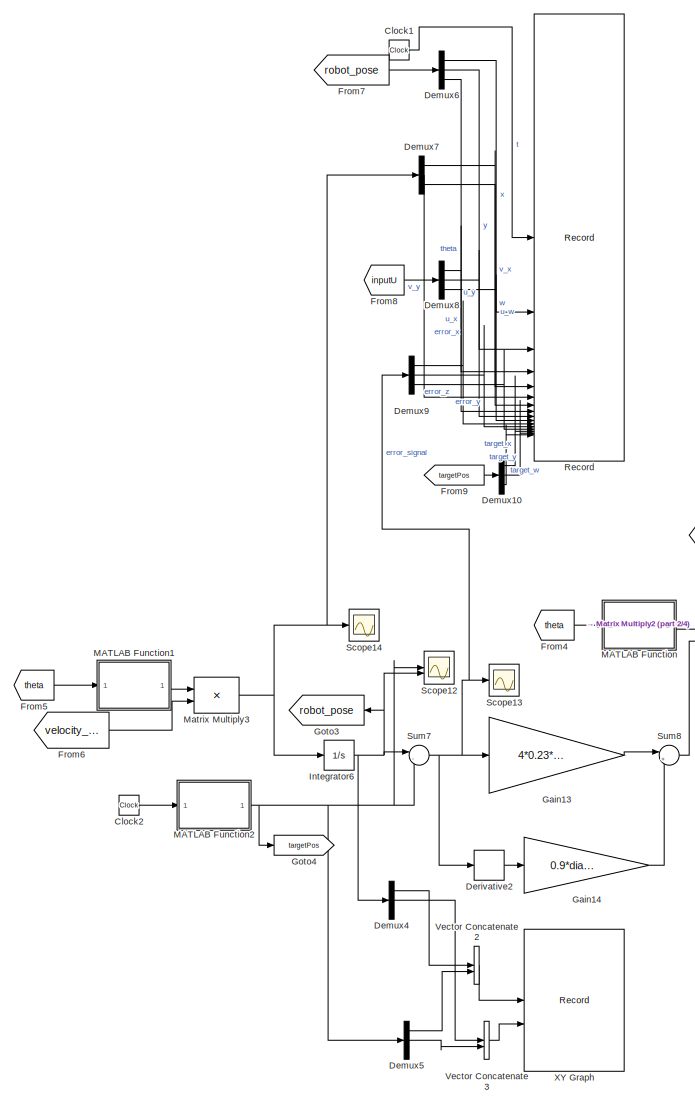
[diagram: root canvas - part 1/4, left side, full height]
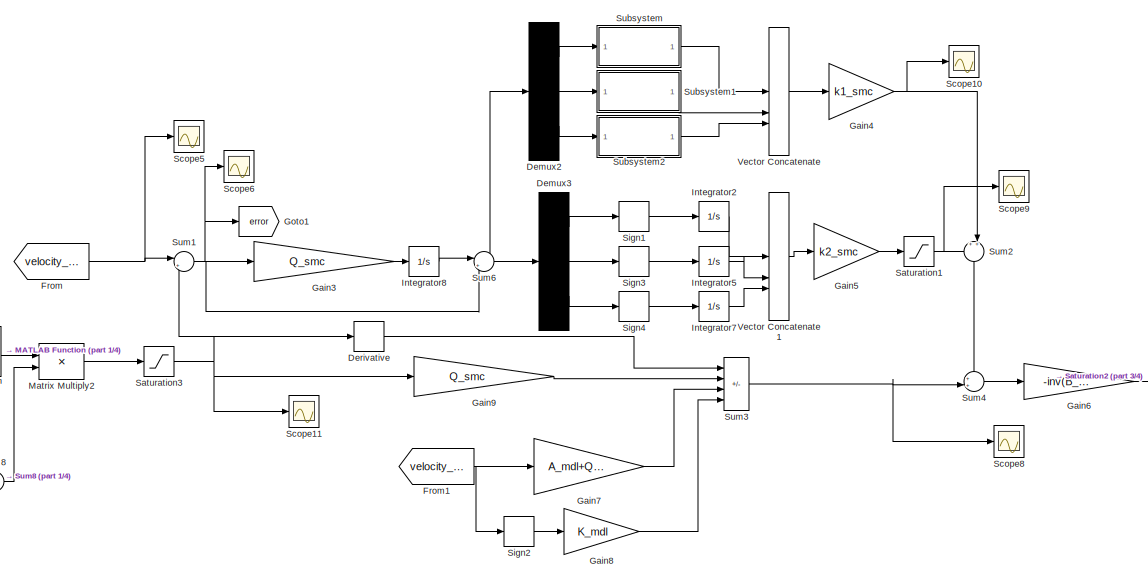
[diagram: root canvas - part 2/4, central region]
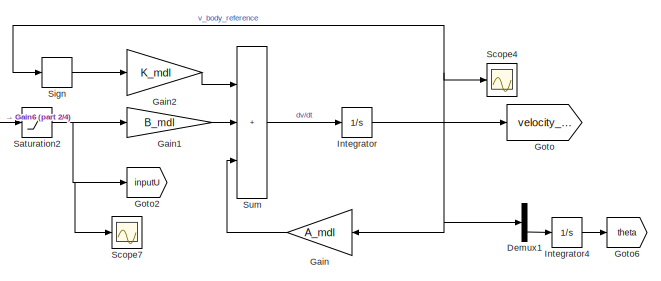
[diagram: root canvas - part 3/4, middle right region]
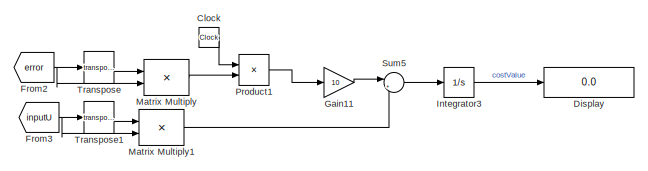
[diagram: root canvas - part 4/4, bottom right region]
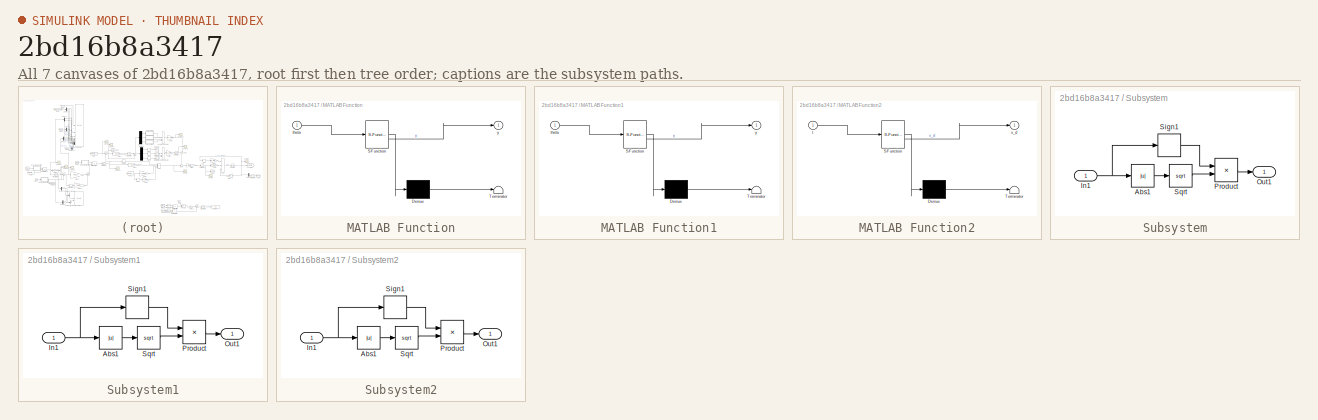
[diagram: thumbnail index - all 7 canvases of the model, root first then tree order]
MODEL slx_2bd16b8a3417
KIND model
CONFIG AbsTol = auto
CONFIG EnableMultiTasking = off
CONFIG FixedStep = 0.0001
CONFIG InitFcn = SimInit
CONFIG MaxStep = auto
CONFIG MinStep = auto
CONFIG RelTol = 1e-3
CONFIG SampleTimeConstraint = Unconstrained
CONFIG SolverName = ode4
CONFIG StartTime = 0.0
CONFIG StopTime = 10
BLOCK [Clock] Clock
BLOCK [Clock] Clock1
BLOCK [Clock] Clock2
BLOCK [Demux] Demux1
  Outputs = 3
BLOCK [Demux] Demux10
  Outputs = 3
BLOCK [Demux] Demux2
  Outputs = 3
BLOCK [Demux] Demux3
  Outputs = 3
BLOCK [Demux] Demux4
  Outputs = 3
BLOCK [Demux] Demux5
  Outputs = 3
BLOCK [Demux] Demux6
  Outputs = 3
BLOCK [Demux] Demux7
  Outputs = 3
BLOCK [Demux] Demux8
  Outputs = 3
BLOCK [Demux] Demux9
  Outputs = 3
BLOCK [Derivative] Derivative
BLOCK [Derivative] Derivative2
BLOCK [Display] Display
  Decimation = 1
BLOCK [From] From
  GotoTag = velocity_body
BLOCK [From] From1
  GotoTag = velocity_body
BLOCK [From] From2
  GotoTag = error
BLOCK [From] From3
  GotoTag = inputU
BLOCK [From] From4
  GotoTag = theta
BLOCK [From] From5
  GotoTag = theta
BLOCK [From] From6
  GotoTag = velocity_body
BLOCK [From] From7
  GotoTag = robot_pose
BLOCK [From] From8
  GotoTag = inputU
BLOCK [From] From9
  GotoTag = targetPos
BLOCK [Gain] Gain
  Gain = A_mdl
  Multiplication = Matrix(K*u)
  NameLocation = top
BLOCK [Gain] Gain1
  Gain = B_mdl
  Multiplication = Matrix(K*u)
BLOCK [Gain] Gain11
  Gain = 10
BLOCK [Gain] Gain13
  Gain = 4*0.23*diag([1,1,1])
  Multiplication = Matrix(K*u)
BLOCK [Gain] Gain14
  Gain = 0.9*diag([1,1,1])
  Multiplication = Matrix(K*u)
BLOCK [Gain] Gain2
  Gain = K_mdl
  Multiplication = Matrix(K*u)
BLOCK [Gain] Gain3
  Gain = Q_smc
  Multiplication = Matrix(K*u)
BLOCK [Gain] Gain4
  Gain = k1_smc
  Multiplication = Matrix(K*u)
BLOCK [Gain] Gain5
  Gain = k2_smc
  Multiplication = Matrix(K*u)
BLOCK [Gain] Gain6
  Gain = -inv(B_mdl)
  Multiplication = Matrix(K*u)
BLOCK [Gain] Gain7
  Gain = A_mdl+Q_smc
  Multiplication = Matrix(K*u)
BLOCK [Gain] Gain8
  Gain = K_mdl
  Multiplication = Matrix(K*u)
BLOCK [Gain] Gain9
  Gain = Q_smc
  Multiplication = Matrix(K*u)
BLOCK [Goto] Goto
  GotoTag = velocity_body
BLOCK [Goto] Goto1
  GotoTag = error
BLOCK [Goto] Goto2
  GotoTag = inputU
BLOCK [Goto] Goto3
  GotoTag = robot_pose
  NameLocation = top
BLOCK [Goto] Goto4
  GotoTag = targetPos
BLOCK [Goto] Goto6
  GotoTag = theta
BLOCK [Integrator] Integrator
BLOCK [Integrator] Integrator2
BLOCK [Integrator] Integrator3
BLOCK [Integrator] Integrator4
BLOCK [Integrator] Integrator5
BLOCK [Integrator] Integrator6
  InitialCondition = [2;-1;0]
BLOCK [Integrator] Integrator7
BLOCK [Integrator] Integrator8
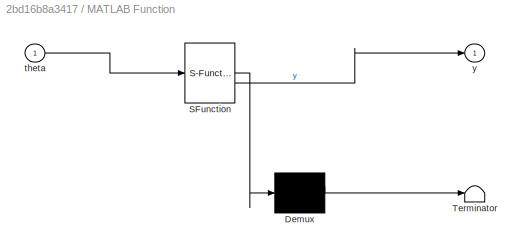
BLOCK [SubSystem] MATLAB Function
  ErrorFcn = Stateflow.Translate.translate
  PermitHierarchicalResolution = ExplicitOnly
  SFBlockType = MATLAB Function
  TreatAsAtomicUnit = on
BLOCK [Demux] MATLAB Function/ Demux 
  Outputs = 1
BLOCK [S-Function] MATLAB Function/ SFunction 
  EnableBusSupport = on
  FunctionName = sf_sfun
  PortCounts = [1 2]
  SFcnIsStateOwnerBlock = off
  SFunctionDeploymentMode = off
  Tag = Stateflow S-Function 1
BLOCK [Terminator] MATLAB Function/ Terminator 
BLOCK [Inport] MATLAB Function/theta
BLOCK [Outport] MATLAB Function/y
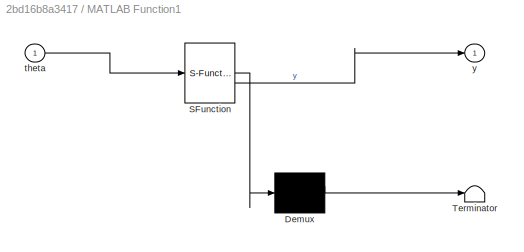
BLOCK [SubSystem] MATLAB Function1
  ErrorFcn = Stateflow.Translate.translate
  PermitHierarchicalResolution = ExplicitOnly
  SFBlockType = MATLAB Function
  TreatAsAtomicUnit = on
BLOCK [Demux] MATLAB Function1/ Demux 
  Outputs = 1
BLOCK [S-Function] MATLAB Function1/ SFunction 
  EnableBusSupport = on
  FunctionName = sf_sfun
  PortCounts = [1 2]
  SFcnIsStateOwnerBlock = off
  SFunctionDeploymentMode = off
  Tag = Stateflow S-Function 3
BLOCK [Terminator] MATLAB Function1/ Terminator 
BLOCK [Inport] MATLAB Function1/theta
BLOCK [Outport] MATLAB Function1/y
BLOCK [SubSystem] MATLAB Function2
  ErrorFcn = Stateflow.Translate.translate
  PermitHierarchicalResolution = ExplicitOnly
  SFBlockType = MATLAB Function
  TreatAsAtomicUnit = on
BLOCK [Demux] MATLAB Function2/ Demux 
  Outputs = 1
BLOCK [S-Function] MATLAB Function2/ SFunction 
  EnableBusSupport = on
  FunctionName = sf_sfun
  PortCounts = [1 2]
  SFcnIsStateOwnerBlock = off
  SFunctionDeploymentMode = off
  Tag = Stateflow S-Function 4
BLOCK [Terminator] MATLAB Function2/ Terminator 
BLOCK [Inport] MATLAB Function2/t
BLOCK [Outport] MATLAB Function2/x_d
BLOCK [Product] Matrix Multiply
  Multiplication = Matrix(*)
BLOCK [Product] Matrix Multiply1
  Multiplication = Matrix(*)
BLOCK [Product] Matrix Multiply2
  Multiplication = Matrix(*)
BLOCK [Product] Matrix Multiply3
  Multiplication = Matrix(*)
BLOCK [Product] Product1
BLOCK [Record] Record
  FileSettingsInternal = {"entries":[{"content":{"excelSettings":{"content":{},"type":"Streamout.ExcelSettings"}},"type":"Streamout.FileSettingStorage","uuid":""}],"packageUris":["http:\/\/schema.mathworks.com\/mf0\/streamout_blocks\/R2020a"],"version":"1.0"}
  Filename = result_10kg.mat
  RecordToFile = on
  SignalsInternal = {"entries":[{"content":{"signals":[{"content":{"blockPath":[],"dimensions":[1],"domain":"","lineColor":"#64d413","lineWidth":2,"plots":[ 1 ],"port":1,"sid":[""],"signalID":1,"signalName":"t"},"type":"RecordBlkView.Signal","uuid":""},{"content":{"blockPath":[],"dimensions":[1,1],"domain":"","lineColor":"#ff13a6","lineWidth":2,"plots":[ 1 ],"port":2,"sid":[""],"signalID":2,"signalName":"x"},"type":"...<+3045ch>
  VisualizationBindings = {"sparklinesplugin":{"info":[{"bindingParametersList":[],"subplotID":1}]}}
BLOCK [Saturate] Saturation1
  LowerLimit = -12
  UpperLimit = 12
BLOCK [Saturate] Saturation2
  LowerLimit = -6
  UpperLimit = 6
BLOCK [Saturate] Saturation3
  LowerLimit = -[2.3;2.3;28]
  UpperLimit = [2.3;2.3;28]
BLOCK [Scope] Scope10
  Floating = off
  NumInputPorts = 1
  ScopeSpecificationString = Simulink.scopes.TimeScopeBlockCfg('CurrentConfiguration', extmgr.ConfigurationSet(extmgr.Configuration('Core','General UI',true),extmgr.Configuration('Core','Source UI',true),extmgr.Configuration('Sources','WiredSimulink',true,'DataLoggingVariableName','ScopeData5'),extmgr.Configuration('Visuals','Time Domain',true,'SerializedDisplays',{struct('MinYLimReal','-14.67125','MaxYLimReal','14.1581','YLa...<+1498ch>
BLOCK [Scope] Scope11
  Floating = off
  NumInputPorts = 1
  ScopeSpecificationString = Simulink.scopes.TimeScopeBlockCfg('CurrentConfiguration', extmgr.ConfigurationSet(extmgr.Configuration('Core','General UI',true),extmgr.Configuration('Core','Source UI',true),extmgr.Configuration('Sources','WiredSimulink',true,'DataLoggingVariableName','ScopeData6'),extmgr.Configuration('Visuals','Time Domain',true,'SerializedDisplays',{struct('MinYLimReal','-2.185','MaxYLimReal','1.265','YLabelRe...<+1481ch>
BLOCK [Scope] Scope12
  Floating = off
  NumInputPorts = 2
  ScopeSpecificationString = Simulink.scopes.TimeScopeBlockCfg('CurrentConfiguration', extmgr.ConfigurationSet(extmgr.Configuration('Core','General UI',true),extmgr.Configuration('Core','Source UI',true),extmgr.Configuration('Sources','WiredSimulink',true,'DataLoggingVariableName','ScopeData1'),extmgr.Configuration('Visuals','Time Domain',true,'SerializedDisplays',{struct('MinYLimReal','-2.375','MaxYLimReal','11.375','YLabelR...<+1578ch>
BLOCK [Scope] Scope13
  Floating = off
  NumInputPorts = 1
  ScopeSpecificationString = Simulink.scopes.TimeScopeBlockCfg('CurrentConfiguration', extmgr.ConfigurationSet(extmgr.Configuration('Core','General UI',true),extmgr.Configuration('Core','Source UI',true),extmgr.Configuration('Sources','WiredSimulink',true,'DataLoggingVariableName','ScopeData1'),extmgr.Configuration('Visuals','Time Domain',true,'SerializedDisplays',{struct('MinYLimReal','-2.375','MaxYLimReal','1.375','YLabelRe...<+1484ch>
BLOCK [Scope] Scope14
  Floating = off
  NumInputPorts = 1
  ScopeSpecificationString = Simulink.scopes.TimeScopeBlockCfg('CurrentConfiguration', extmgr.ConfigurationSet(extmgr.Configuration('Core','General UI',true),extmgr.Configuration('Core','Source UI',true),extmgr.Configuration('Sources','WiredSimulink',true,'DataLoggingVariableName','ScopeData10'),extmgr.Configuration('Visuals','Time Domain',true,'SerializedDisplays',{struct('MinYLimReal','-0.24192','MaxYLimReal','0.45399','YLa...<+1509ch>
BLOCK [Scope] Scope4
  Floating = off
  NumInputPorts = 2
  ScopeSpecificationString = Simulink.scopes.TimeScopeBlockCfg('CurrentConfiguration', extmgr.ConfigurationSet(extmgr.Configuration('Core','General UI',true),extmgr.Configuration('Core','Source UI',true),extmgr.Configuration('Sources','WiredSimulink',true,'DataLoggingVariableName','ScopeData1'),extmgr.Configuration('Visuals','Time Domain',true,'SerializedDisplays',{struct('MinYLimReal','-0.55981','MaxYLimReal','0.55457','YLab...<+1885ch>
BLOCK [Scope] Scope5
  Floating = off
  NumInputPorts = 1
  ScopeSpecificationString = Simulink.scopes.TimeScopeBlockCfg('CurrentConfiguration', extmgr.ConfigurationSet(extmgr.Configuration('Core','General UI',true),extmgr.Configuration('Core','Source UI',true),extmgr.Configuration('Sources','WiredSimulink',true,'DataLoggingVariableName','ScopeData1'),extmgr.Configuration('Visuals','Time Domain',true,'SerializedDisplays',{struct('MinYLimReal','-0.7222','MaxYLimReal','0.60534','YLabe...<+1540ch>
BLOCK [Scope] Scope6
  Floating = off
  NumInputPorts = 1
  ScopeSpecificationString = Simulink.scopes.TimeScopeBlockCfg('CurrentConfiguration', extmgr.ConfigurationSet(extmgr.Configuration('Core','General UI',true),extmgr.Configuration('Core','Source UI',true),extmgr.Configuration('Sources','WiredSimulink',true,'DataLoggingVariableName','ScopeData1'),extmgr.Configuration('Visuals','Time Domain',true,'SerializedDisplays',{struct('MinYLimReal','-1.83009','MaxYLimReal','2.24779','YLab...<+1472ch>
BLOCK [Scope] Scope7
  Floating = off
  NumInputPorts = 1
  ScopeSpecificationString = Simulink.scopes.TimeScopeBlockCfg('CurrentConfiguration', extmgr.ConfigurationSet(extmgr.Configuration('Core','General UI',true),extmgr.Configuration('Core','Source UI',true),extmgr.Configuration('Sources','WiredSimulink',true,'DataLoggingVariableName','ScopeData2'),extmgr.Configuration('Visuals','Time Domain',true,'SerializedDisplays',{struct('MinYLimReal','-7.5','MaxYLimReal','7.5','YLabelReal',...<+1496ch>
BLOCK [Scope] Scope8
  Floating = off
  NumInputPorts = 1
  ScopeSpecificationString = Simulink.scopes.TimeScopeBlockCfg('CurrentConfiguration', extmgr.ConfigurationSet(extmgr.Configuration('Core','General UI',true),extmgr.Configuration('Core','Source UI',true),extmgr.Configuration('Sources','WiredSimulink',true,'DataLoggingVariableName','ScopeData3'),extmgr.Configuration('Visuals','Time Domain',true,'SerializedDisplays',{struct('MinYLimReal','-45.2807','MaxYLimReal','45.40245','YLa...<+1476ch>
BLOCK [Scope] Scope9
  Floating = off
  NumInputPorts = 1
  ScopeSpecificationString = Simulink.scopes.TimeScopeBlockCfg('CurrentConfiguration', extmgr.ConfigurationSet(extmgr.Configuration('Core','General UI',true),extmgr.Configuration('Core','Source UI',true),extmgr.Configuration('Sources','WiredSimulink',true,'DataLoggingVariableName','ScopeData4'),extmgr.Configuration('Visuals','Time Domain',true,'SerializedDisplays',{struct('MinYLimReal','-2.22939','MaxYLimReal','1.68422','YLab...<+1493ch>
BLOCK [Signum] Sign
BLOCK [Signum] Sign1
BLOCK [Signum] Sign2
BLOCK [Signum] Sign3
BLOCK [Signum] Sign4
BLOCK [SubSystem] Subsystem
BLOCK [Abs] Subsystem/Abs1
  SaturateOnIntegerOverflow = off
BLOCK [Inport] Subsystem/In1
BLOCK [Outport] Subsystem/Out1
BLOCK [Product] Subsystem/Product
BLOCK [Signum] Subsystem/Sign1
BLOCK [Sqrt] Subsystem/Sqrt
BLOCK [SubSystem] Subsystem1
BLOCK [Abs] Subsystem1/Abs1
  SaturateOnIntegerOverflow = off
BLOCK [Inport] Subsystem1/In1
BLOCK [Outport] Subsystem1/Out1
BLOCK [Product] Subsystem1/Product
BLOCK [Signum] Subsystem1/Sign1
BLOCK [Sqrt] Subsystem1/Sqrt
BLOCK [SubSystem] Subsystem2
BLOCK [Abs] Subsystem2/Abs1
  SaturateOnIntegerOverflow = off
BLOCK [Inport] Subsystem2/In1
BLOCK [Outport] Subsystem2/Out1
BLOCK [Product] Subsystem2/Product
BLOCK [Signum] Subsystem2/Sign1
BLOCK [Sqrt] Subsystem2/Sqrt
BLOCK [Sum] Sum
  IconShape = rectangular
  Inputs = +++
BLOCK [Sum] Sum1
  Inputs = |+-
BLOCK [Sum] Sum2
  Inputs = ++|
  NameLocation = left
BLOCK [Sum] Sum3
  IconShape = rectangular
  Inputs = --++
BLOCK [Sum] Sum4
  Inputs = ++|
BLOCK [Sum] Sum5
  Inputs = |++
BLOCK [Sum] Sum6
  Inputs = |++
BLOCK [Sum] Sum7
  Inputs = |-+
BLOCK [Sum] Sum8
  Inputs = |++
BLOCK [Math] Transpose
  Operator = transpose
BLOCK [Math] Transpose1
  Operator = transpose
BLOCK [Concatenate] Vector Concatenate
  Mode = Multidimensional array
  NumInputs = 3
BLOCK [Concatenate] Vector Concatenate1
  Mode = Multidimensional array
  NumInputs = 3
BLOCK [Concatenate] Vector Concatenate2
  Mode = Multidimensional array
BLOCK [Concatenate] Vector Concatenate3
  Mode = Multidimensional array
BLOCK [Record] XY Graph
  CompatibilityTag = XY
  FileSettingsInternal = {"entries":[{"content":{"excelSettings":{"content":{},"type":"Streamout.ExcelSettings"}},"type":"Streamout.FileSettingStorage","uuid":""}],"packageUris":["http:\/\/schema.mathworks.com\/mf0\/streamout_blocks\/R2020a"],"version":"1.0"}
  Filename = recording.mat
  Layout = [1 1]
  RecordToFile = on
  SignalsInternal = {"entries":[{"content":{"signals":[{"content":{"blockPath":[],"dimensions":[2,1],"domain":"","hasChildren":true,"lineColor":"#ff6929","lineWidth":2,"port":1,"sid":[""],"signalID":1,"signalName":"Vector\nConcatenate2"},"type":"RecordBlkView.Signal","uuid":""},{"content":{"blockPath":[],"channel":[1,1],"dimensions":[2,1],"domain":"","lineColor":"#edb120","lineWidth":2,"parentID":1,"plots":[ 1 ],"por...<+1220ch>
  VisualizationBindings = {"xyplotplugin":{"info":[{"series":[{"bindingParametersList":[{"parameter":"X-Axis","signalID":2,"signalName":"Vector\nConcatenate2(1,1)"},{"parameter":"Y-Axis","signalID":4,"signalName":"Vector\nConcatenate3(1,1)"}],"seriesID":0},{"bindingParametersList":[{"parameter":"X-Axis","signalID":5,"signalName":"Vector\nConcatenate2(2,1)"},{"parameter":"Y-Axis","signalID":6,"signalName":"Vector\nConcatena...<+44ch>
LINE Clock1:1 -> Record:1
LINE Clock2:1 -> MATLAB Function2:1
LINE Clock:1 -> Product1:1
LINE Demux10:1 -> Record:14
LINE Demux10:2 -> Record:15
LINE Demux10:3 -> Record:16
LINE Demux1:3 -> Integrator4:1
LINE Demux2:1 -> Subsystem:1
LINE Demux2:2 -> Subsystem1:1
LINE Demux2:3 -> Subsystem2:1
LINE Demux3:1 -> Sign1:1
LINE Demux3:2 -> Sign3:1
LINE Demux3:3 -> Sign4:1
LINE Demux4:1 -> Vector Concatenate2:1
LINE Demux4:2 -> Vector Concatenate3:1
LINE Demux5:1 -> Vector Concatenate2:2
LINE Demux5:2 -> Vector Concatenate3:2
LINE Demux6:1 -> Record:2
LINE Demux6:2 -> Record:3
LINE Demux6:3 -> Record:4
LINE Demux7:1 -> Record:5
LINE Demux7:2 -> Record:6
LINE Demux7:3 -> Record:7
LINE Demux8:1 -> Record:8
LINE Demux8:2 -> Record:9
LINE Demux8:3 -> Record:10
LINE Demux9:1 -> Record:11
LINE Demux9:2 -> Record:12
LINE Demux9:3 -> Record:13
LINE Derivative2:1 -> Gain14:1
LINE Derivative:1 -> Sum3:1
NET From1:1 -> Gain7:1, Sign2:1
NET From2:1 -> Matrix Multiply:2, Transpose:1
NET From3:1 -> Matrix Multiply1:2, Transpose1:1
LINE From4:1 -> MATLAB Function:1
LINE From5:1 -> MATLAB Function1:1
LINE From6:1 -> Matrix Multiply3:2
LINE From7:1 -> Demux6:1
LINE From8:1 -> Demux8:1
LINE From9:1 -> Demux10:1
NET From:1 -> Scope5:1, Sum1:1
LINE Gain11:1 -> Sum5:1
LINE Gain13:1 -> Sum8:1
LINE Gain14:1 -> Sum8:2
LINE Gain1:1 -> Sum:2
LINE Gain2:1 -> Sum:1
LINE Gain3:1 -> Integrator8:1
NET Gain4:1 -> Scope10:1, Sum2:2
LINE Gain5:1 -> Saturation1:1
LINE Gain6:1 -> Saturation2:1
LINE Gain7:1 -> Sum3:3
LINE Gain8:1 -> Sum3:4
LINE Gain9:1 -> Sum3:2
LINE Gain:1 -> Sum:3
LINE Integrator2:1 -> Vector Concatenate1:1
LINE Integrator3:1 -> Display:1
LINE Integrator4:1 -> Goto6:1
LINE Integrator5:1 -> Vector Concatenate1:2
NET Integrator6:1 -> Demux4:1, Goto3:1, Scope12:2, Sum7:1
LINE Integrator7:1 -> Vector Concatenate1:3
LINE Integrator8:1 -> Sum6:1
NET Integrator:1 -> Demux1:1, Gain:1, Goto:1, Scope4:1, Sign:1
LINE MATLAB Function1:1 -> Matrix Multiply3:1
NET MATLAB Function2:1 -> Demux5:1, Goto4:1, Scope12:1, Sum7:2
LINE MATLAB Function:1 -> Matrix Multiply2:1
LINE Matrix Multiply1:1 -> Sum5:2
LINE Matrix Multiply2:1 -> Saturation3:1
NET Matrix Multiply3:1 -> Demux7:1, Integrator6:1, Scope14:1
LINE Matrix Multiply:1 -> Product1:2
LINE Product1:1 -> Gain11:1
NET Saturation1:1 -> Scope9:1, Sum2:1
NET Saturation2:1 -> Gain1:1, Goto2:1, Scope7:1
NET Saturation3:1 -> Derivative:1, Gain9:1, Scope11:1, Sum1:2
LINE Sign1:1 -> Integrator2:1
LINE Sign2:1 -> Gain8:1
LINE Sign3:1 -> Integrator5:1
LINE Sign4:1 -> Integrator7:1
LINE Sign:1 -> Gain2:1
LINE Subsystem/Abs1:1 -> Subsystem/Sqrt:1
NET Subsystem/In1:1 -> Subsystem/Abs1:1, Subsystem/Sign1:1
LINE Subsystem/Product:1 -> Subsystem/Out1:1
LINE Subsystem/Sign1:1 -> Subsystem/Product:1
LINE Subsystem/Sqrt:1 -> Subsystem/Product:2
LINE Subsystem1/Abs1:1 -> Subsystem1/Sqrt:1
NET Subsystem1/In1:1 -> Subsystem1/Abs1:1, Subsystem1/Sign1:1
LINE Subsystem1/Product:1 -> Subsystem1/Out1:1
LINE Subsystem1/Sign1:1 -> Subsystem1/Product:1
LINE Subsystem1/Sqrt:1 -> Subsystem1/Product:2
LINE Subsystem1:1 -> Vector Concatenate:2
LINE Subsystem2/Abs1:1 -> Subsystem2/Sqrt:1
NET Subsystem2/In1:1 -> Subsystem2/Abs1:1, Subsystem2/Sign1:1
LINE Subsystem2/Product:1 -> Subsystem2/Out1:1
LINE Subsystem2/Sign1:1 -> Subsystem2/Product:1
LINE Subsystem2/Sqrt:1 -> Subsystem2/Product:2
LINE Subsystem2:1 -> Vector Concatenate:3
LINE Subsystem:1 -> Vector Concatenate:1
NET Sum1:1 -> Gain3:1, Goto1:1, Scope6:1, Sum6:2
LINE Sum2:1 -> Sum4:1
NET Sum3:1 -> Scope8:1, Sum4:2
LINE Sum4:1 -> Gain6:1
LINE Sum5:1 -> Integrator3:1
NET Sum6:1 -> Demux2:1, Demux3:1
NET Sum7:1 -> Demux9:1, Derivative2:1, Gain13:1, Scope13:1
LINE Sum8:1 -> Matrix Multiply2:2
LINE Sum:1 -> Integrator:1
LINE Transpose1:1 -> Matrix Multiply1:1
LINE Transpose:1 -> Matrix Multiply:1
LINE Vector Concatenate1:1 -> Gain5:1
LINE Vector Concatenate2:1 -> XY Graph:1
LINE Vector Concatenate3:1 -> XY Graph:2
LINE Vector Concatenate:1 -> Gain4:1
note: NET lines group one-source signal fan-out (src -> all destinations, sorted); 1:1 wires keep LINE
CHART MATLAB Function1 states=1 transitions=1
  STATE_LABEL 'eML_blk_kernel()'
  STATE_LABEL 'SCRIPT:\nfunction y = body2world(theta)\n\ny = [cos(theta), -sin(theta), 0;\n     sin(theta), cos(theta), 0;\n     0, 0, 1];\n'
CHART MATLAB Function2 states=1 transitions=1
  STATE_LABEL 'eML_blk_kernel()'
  STATE_LABEL 'SCRIPT:\nfunction x_d = fcn(t)\nT = 100;\nif t <= T/4\n    x_d = [10 * t / (T/4); 0; 0];  % Move along x-axis\nelseif t <= T/2\n    x_d = [10; 5 * (t - T/4) / (T/4); 0];  % Move along y-axis\nelseif t <= 3*T/4\n    x_d = [10 - 10 * (t - T/2) / (T/4); 5; 0];  % Move back along x-axis\nelseif t <= T\n    x_d = [0; 5 - 5 * (t - 3*T/4) / (T/4); 0];  % Move back along y-axis\nelse\n    x_d = [0;0;0];\nend\n\n'
CHART MATLAB Function states=1 transitions=1
  STATE_LABEL 'eML_blk_kernel()'
  STATE_LABEL "SCRIPT:\nfunction y = world2body(theta)\n\ny = [cos(theta), -sin(theta), 0;\n     sin(theta), cos(theta), 0;\n     0, 0, 1]';\n"
CHART  states=0 transitions=0
CHART  states=0 transitions=0
CHART  states=0 transitions=0
